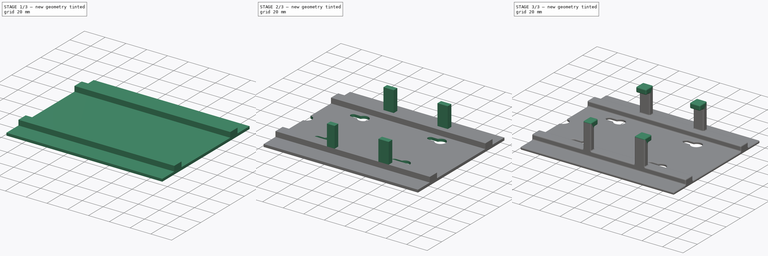
[diagram: build sequence overview — one tinted view per stage of 3, left to right]
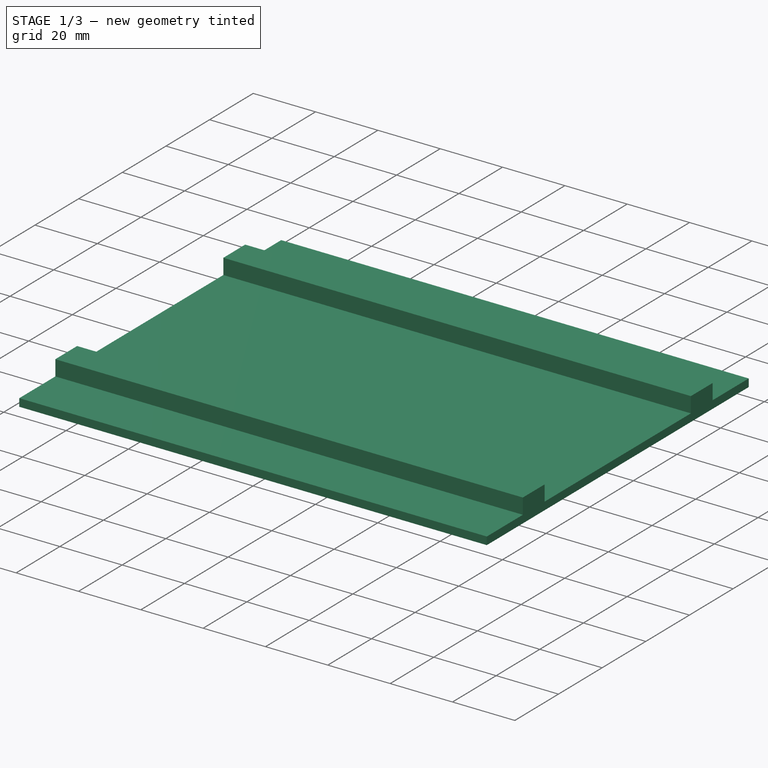
[diagram: stage 1 of 3 — iso view after this stage's code; geometry added in this stage tinted green]
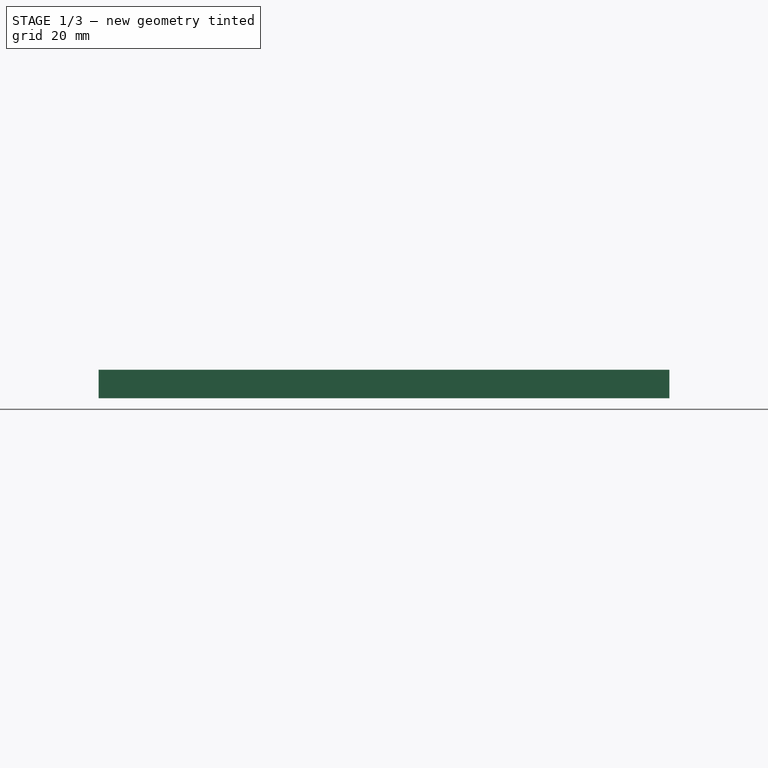
[diagram: stage 1 of 3 — front view after this stage's code; geometry added in this stage tinted green]
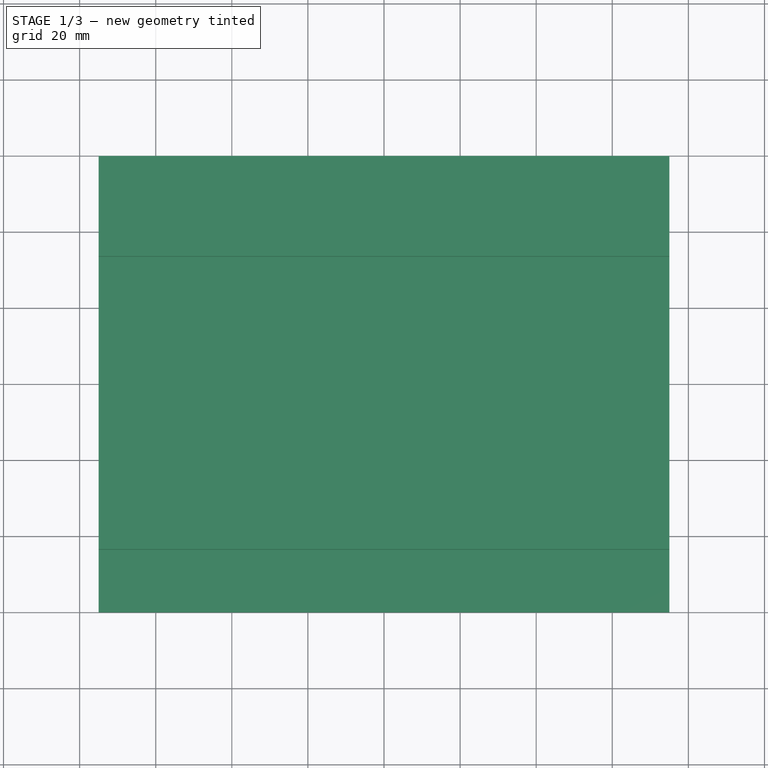
[diagram: stage 1 of 3 — top view after this stage's code; geometry added in this stage tinted green]
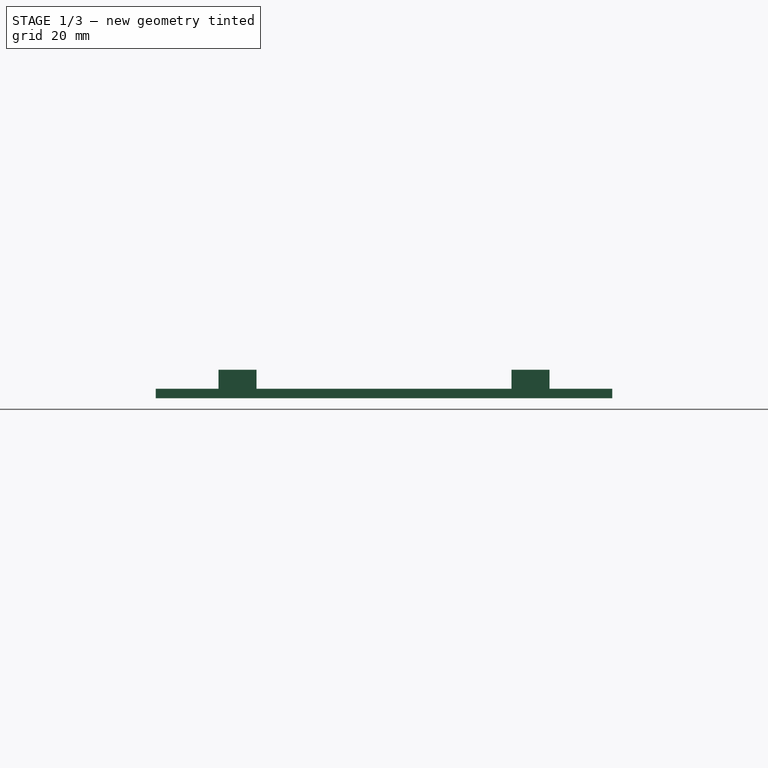
[diagram: stage 1 of 3 — right view after this stage's code; geometry added in this stage tinted green]
FCSTD DOCUMENT  (FreeCAD 1.1R20260325 (Git shallow))
Label: ZimaBoard2Mount
License: All rights reserved
LicenseURL: https://en.wikipedia.org/wiki/All_rights_reserved
objects: Sketcher::SketchObject×5, PartDesign::Pad×4, App::Point×1, PartDesign::Pocket×1, PartDesign::Fillet×1, PartDesign::Body×1
note: 29 computed .brp shape members not serialized (recipe doc carries the construction recipe); baked Part::Feature solids carry a one-line shape summary decoded from their .brp

FEATURE [App::Point] Origin001  label="Origin"
  Role = Origin
FEATURE [Sketcher::SketchObject] Sketch  label="Base"
  ArcFitTolerance = 1e-06
  AttachmentSupport = -> [Origin]
  ExternalTypes = [0]
  FullyConstrained = true
  MakeInternals = false
  MapMode = 5
  _ExternalGeoVersion = 1
  sketch-geometry (14):
    g0: LineSegment [constr] StartX=-70 StartY=38.5 StartZ=0 EndX=-70 EndY=-38.5 EndZ=0
    g1: LineSegment [constr] StartX=-70 StartY=-38.5 StartZ=0 EndX=70 EndY=-38.5 EndZ=0
    g2: LineSegment [constr] StartX=70 StartY=-38.5 StartZ=0 EndX=70 EndY=38.5 EndZ=0
    g3: LineSegment [constr] StartX=70 StartY=38.5 StartZ=0 EndX=-70 EndY=38.5 EndZ=0
    g4: GeomPoint [constr] X=0 Y=-1e-16 Z=0
    g5: LineSegment [constr] StartX=-16 StartY=-38.5 StartZ=0 EndX=-16 EndY=-44.5 EndZ=0
    g6: LineSegment [constr] StartX=-16 StartY=-44.5 StartZ=0 EndX=23 EndY=-44.5 EndZ=0
    g7: LineSegment [constr] StartX=23 StartY=-44.5 StartZ=0 EndX=23 EndY=-38.5 EndZ=0
    g8: LineSegment [constr] StartX=23 StartY=-38.5 StartZ=0 EndX=-16 EndY=-38.5 EndZ=0
    g9: LineSegment StartX=-75 StartY=60 StartZ=0 EndX=-75 EndY=-60 EndZ=0
    g10: LineSegment StartX=-75 StartY=-60 StartZ=0 EndX=75 EndY=-60 EndZ=0
    g11: LineSegment StartX=75 StartY=-60 StartZ=0 EndX=75 EndY=60 EndZ=0
    g12: LineSegment StartX=75 StartY=60 StartZ=0 EndX=-75 EndY=60 EndZ=0
    g13: GeomPoint [constr] X=0 Y=-1e-16 Z=0
  constraints (36):
    c: Coincident(g0,g1)
    c: Coincident(g1,g2)
    c: Coincident(g2,g3)
    c: Coincident(g3,g0)
    c: Vertical(g0)
    c: Vertical(g2)
    c: Horizontal(g1)
    c: Horizontal(g3)
    c: Symmetric(g2,g0,g4)
    c: Coincident(g4,g-1)
    c: DistanceX(g3,g3) = 140
    c: DistanceY(g2,g2) = 77
    c: Coincident(g5,g6)
    c: Coincident(g6,g7)
    c: Coincident(g7,g8)
    c: Coincident(g8,g5)
    c: Vertical(g5)
    c: Vertical(g7)
    c: Horizontal(g6)
    c: Horizontal(g8)
    c: DistanceX(g6,g6) = 39
    c: Distance(g7,g7) = 6
    c: PointOnObject(g5,g1)
    c: Distance(g2,g7) = 47
    c: Coincident(g9,g10)
    c: Coincident(g10,g11)
    c: Coincident(g11,g12)
    c: Coincident(g12,g9)
    c: Vertical(g9)
    c: Vertical(g11)
    c: Horizontal(g10)
    c: Horizontal(g12)
    c: Symmetric(g11,g9,g13)
    c: Coincident(g13,g4)
    c: Distance(g0,g9) = 5
    c: DistanceY(g9,g9) = 120
FEATURE [PartDesign::Pad] Pad  label="BasePad"
  Direction = (0,0,1)
  Length = 2.5
  Length2 = 10
  Profile = -> Sketch
  ReferenceAxis = -> Sketch [N_Axis]
  Refine = true
  SideType = 0
  Suppressed = false
  Type = 0
  Type2 = 0
FEATURE [Sketcher::SketchObject] Sketch001  label="StandOffs"
  ArcFitTolerance = 1e-06
  AttachmentSupport = -> [Pad]
  ExternalGeometry = -> [Pad]
  ExternalTypes = [0,0,0,0]
  FullyConstrained = true
  MakeInternals = false
  MapMode = 5
  Placement = pos=(0,0,2.5) rot=(0,0,1;0rad)
  _ExternalGeoVersion = 1
  sketch-geometry (13):
    g0: LineSegment StartX=-75 StartY=-43.5 StartZ=0 EndX=75 EndY=-43.5 EndZ=0
    g1: LineSegment StartX=75 StartY=-43.5 StartZ=0 EndX=75 EndY=-33.5 EndZ=0
    g2: LineSegment StartX=75 StartY=-33.5 StartZ=0 EndX=-75 EndY=-33.5 EndZ=0
    g3: LineSegment StartX=-75 StartY=-33.5 StartZ=0 EndX=-75 EndY=-43.5 EndZ=0
    g4: LineSegment StartX=-75 StartY=43.5 StartZ=0 EndX=-75 EndY=33.5 EndZ=0
    g5: LineSegment StartX=-75 StartY=33.5 StartZ=0 EndX=75 EndY=33.5 EndZ=0
    g6: LineSegment StartX=75 StartY=33.5 StartZ=0 EndX=75 EndY=43.5 EndZ=0
    g7: LineSegment StartX=75 StartY=43.5 StartZ=0 EndX=-75 EndY=43.5 EndZ=0
    g8: LineSegment [constr] StartX=-75 StartY=43.5 StartZ=0 EndX=-75 EndY=-43.5 EndZ=0
    g9: LineSegment [constr] StartX=-75 StartY=-43.5 StartZ=0 EndX=75 EndY=-43.5 EndZ=0
    g10: LineSegment [constr] StartX=75 StartY=-43.5 StartZ=0 EndX=75 EndY=43.5 EndZ=0
    g11: LineSegment [constr] StartX=75 StartY=43.5 StartZ=0 EndX=-75 EndY=43.5 EndZ=0
    g12: GeomPoint [constr] X=0 Y=0 Z=0
  constraints (34):
    c: Horizontal(g0)
    c: Horizontal(g2)
    c: Vertical(g1)
    c: Vertical(g3)
    c: PointOnObject(g1,g-4)
    c: Vertical(g4)
    c: Vertical(g6)
    c: Horizontal(g5)
    c: Horizontal(g7)
    c: PointOnObject(g5,g-4)
    c: Distance(g4,g4) = 10
    c: Distance(g3,g3) = 10
    c: Coincident(g4,g7)
    c: Coincident(g6,g7)
    c: Coincident(g6,g5)
    c: Coincident(g5,g4)
    c: PointOnObject(g4,g-3)
    c: Coincident(g1,g2)
    c: Coincident(g3,g2)
    c: Coincident(g3,g0)
    c: Coincident(g1,g0)
    c: PointOnObject(g2,g-3)
    c: Coincident(g8,g9)
    c: Coincident(g9,g10)
    c: Coincident(g10,g11)
    c: Coincident(g11,g8)
    c: Vertical(g8)
    c: Horizontal(g9)
    c: Horizontal(g11)
    c: Symmetric(g10,g8,g12)
    c: Coincident(g12,g-1)
    c: DistanceY(g10,g10) = 87
    c: Coincident(g6,g10)
    c: Coincident(g0,g9)
FEATURE [PartDesign::Pad] Pad001  label="StandOffsPad"
  BaseFeature = -> Pad
  Direction = (0,0,1)
  Length = 5
  Length2 = 10
  Profile = -> Sketch001
  ReferenceAxis = -> Sketch001 [N_Axis]
  Refine = true
  SideType = 0
  Suppressed = false
  Type = 0
  Type2 = 0
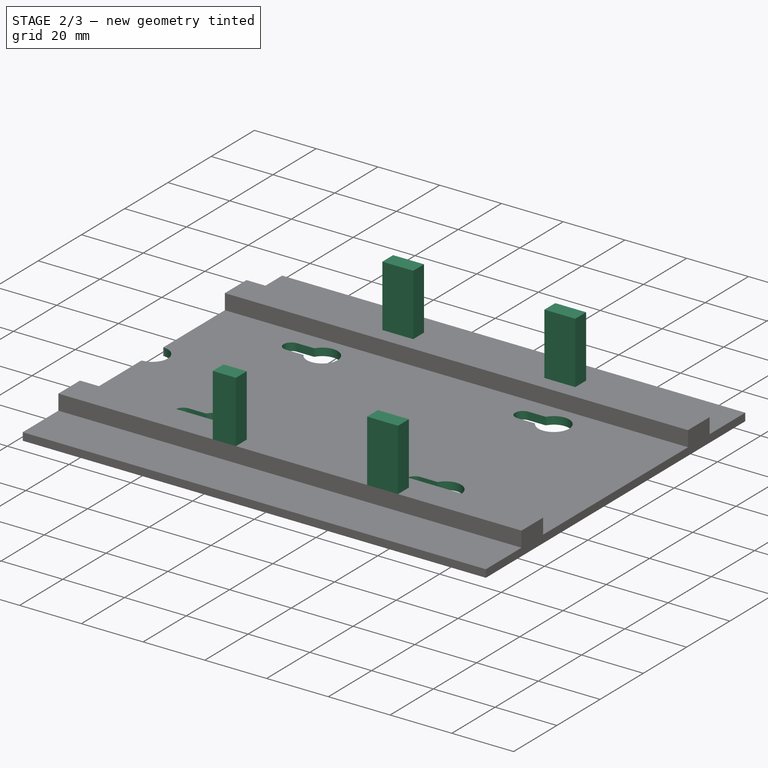
[diagram: stage 2 of 3 — iso view after this stage's code; geometry added in this stage tinted green]
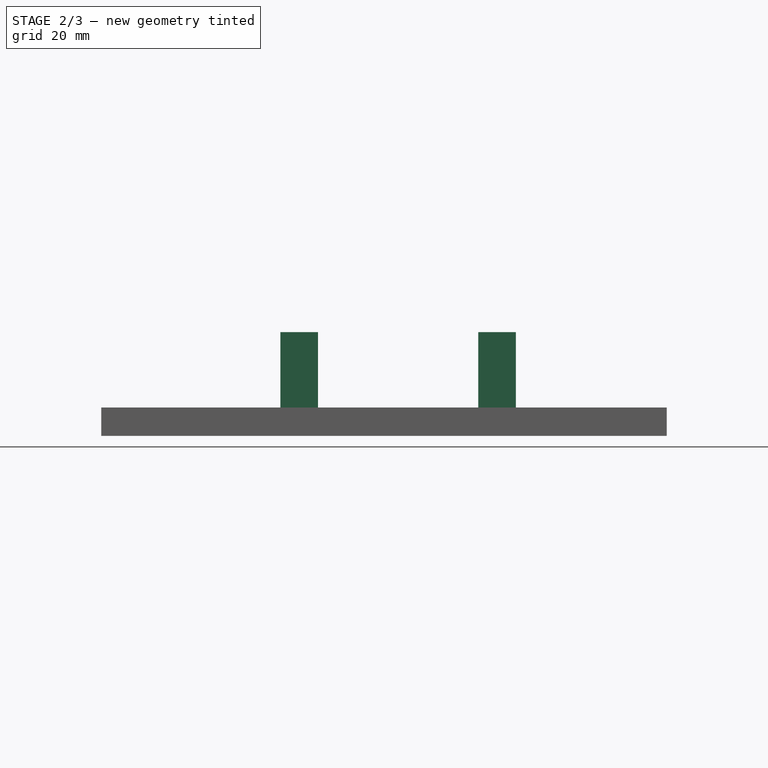
[diagram: stage 2 of 3 — front view after this stage's code; geometry added in this stage tinted green]
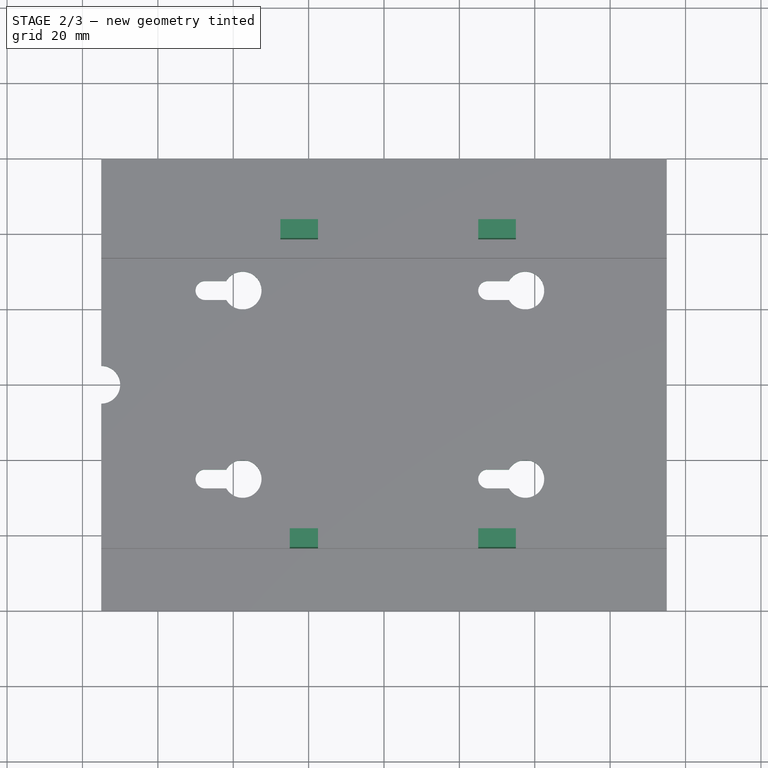
[diagram: stage 2 of 3 — top view after this stage's code; geometry added in this stage tinted green]
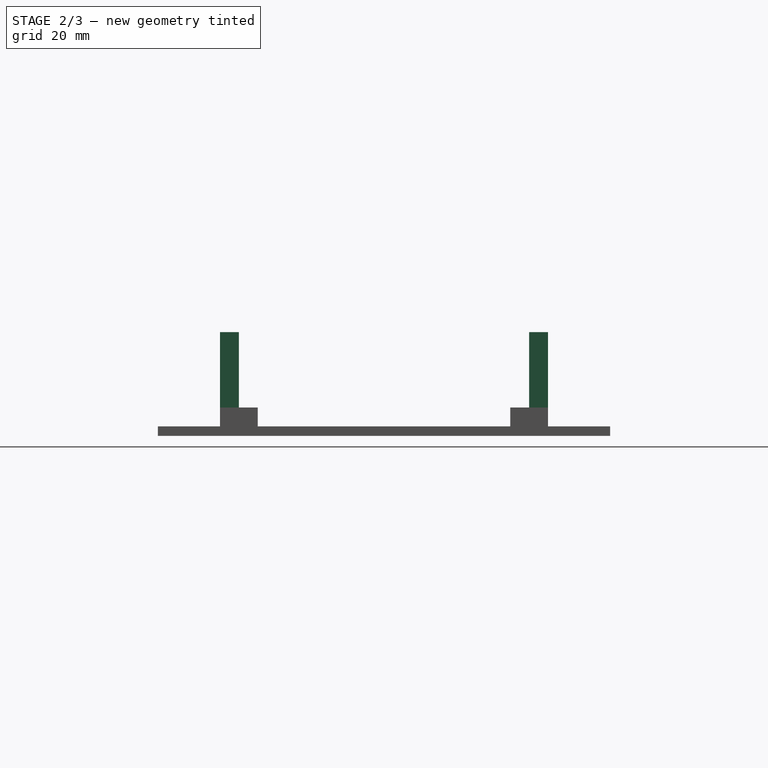
[diagram: stage 2 of 3 — right view after this stage's code; geometry added in this stage tinted green]
FEATURE [Sketcher::SketchObject] Sketch002  label="MountHoles"
  ArcFitTolerance = 1e-06
  AttachmentSupport = -> [Pad001]
  ExternalTypes = [0]
  FullyConstrained = true
  MakeInternals = false
  MapMode = 5
  Placement = pos=(0,0,2.5) rot=(0,0,1;0rad)
  _ExternalGeoVersion = 1
  sketch-geometry (28):
    g0: LineSegment [constr] StartX=-37.5 StartY=25 StartZ=0 EndX=-37.5 EndY=-25 EndZ=0
    g1: LineSegment [constr] StartX=-37.5 StartY=-25 StartZ=0 EndX=37.5 EndY=-25 EndZ=0
    g2: LineSegment [constr] StartX=37.5 StartY=-25 StartZ=0 EndX=37.5 EndY=25 EndZ=0
    g3: LineSegment [constr] StartX=37.5 StartY=25 StartZ=0 EndX=-37.5 EndY=25 EndZ=0
    g4: GeomPoint [constr] X=0 Y=0 Z=0
    g5: Circle CenterX=-37.5 CenterY=25 CenterZ=0 NormalX=0 NormalY=0 NormalZ=1 AngleXU=0 Radius=5
    g6: Circle CenterX=37.5 CenterY=25 CenterZ=0 NormalX=0 NormalY=0 NormalZ=1 AngleXU=0 Radius=5
    g7: Circle CenterX=-37.5 CenterY=-25 CenterZ=0 NormalX=0 NormalY=0 NormalZ=1 AngleXU=0 Radius=5
    g8: Circle CenterX=37.5 CenterY=-25 CenterZ=0 NormalX=0 NormalY=0 NormalZ=1 AngleXU=0 Radius=5
    g9: LineSegment [constr] StartX=-37.5 StartY=25 StartZ=0 EndX=-75 EndY=25 EndZ=0
    g10: LineSegment [constr] StartX=-37.5 StartY=-25 StartZ=0 EndX=-75 EndY=-25 EndZ=0
    g11: Circle CenterX=-75 CenterY=0 CenterZ=0 NormalX=0 NormalY=0 NormalZ=1 AngleXU=0 Radius=5
    g12: ArcOfCircle CenterX=-37.5 CenterY=25 CenterZ=0 NormalX=0 NormalY=0 NormalZ=1 AngleXU=0 Radius=2.5 StartAngle=4.71239 EndAngle=7.85398
    g13: ArcOfCircle CenterX=-47.5 CenterY=25 CenterZ=0 NormalX=0 NormalY=0 NormalZ=1 AngleXU=0 Radius=2.5 StartAngle=1.5708 EndAngle=4.71239
    g14: LineSegment StartX=-37.5 StartY=22.5 StartZ=0 EndX=-47.5 EndY=22.5 EndZ=0
    g15: LineSegment StartX=-37.5 StartY=27.5 StartZ=0 EndX=-47.5 EndY=27.5 EndZ=0
    g16: ArcOfCircle CenterX=-37.5 CenterY=-25 CenterZ=0 NormalX=0 NormalY=0 NormalZ=1 AngleXU=0 Radius=2.5 StartAngle=4.71239 EndAngle=7.85398
    g17: ArcOfCircle CenterX=-47.5 CenterY=-25 CenterZ=0 NormalX=0 NormalY=0 NormalZ=1 AngleXU=0 Radius=2.5 StartAngle=1.5708 EndAngle=4.71239
    g18: LineSegment StartX=-37.5 StartY=-27.5 StartZ=0 EndX=-47.5 EndY=-27.5 EndZ=0
    g19: LineSegment StartX=-37.5 StartY=-22.5 StartZ=0 EndX=-47.5 EndY=-22.5 EndZ=0
    g20: ArcOfCircle CenterX=37.5 CenterY=-25 CenterZ=0 NormalX=0 NormalY=0 NormalZ=1 AngleXU=0 Radius=2.5 StartAngle=4.71239 EndAngle=7.85398
    g21: ArcOfCircle CenterX=27.5 CenterY=-25 CenterZ=0 NormalX=0 NormalY=0 NormalZ=1 AngleXU=0 Radius=2.5 StartAngle=1.5708 EndAngle=4.71239
    g22: LineSegment StartX=37.5 StartY=-27.5 StartZ=0 EndX=27.5 EndY=-27.5 EndZ=0
    g23: LineSegment StartX=37.5 StartY=-22.5 StartZ=0 EndX=27.5 EndY=-22.5 EndZ=0
    g24: ArcOfCircle CenterX=37.5 CenterY=25 CenterZ=0 NormalX=0 NormalY=0 NormalZ=1 AngleXU=0 Radius=2.5 StartAngle=4.71239 EndAngle=7.85398
    g25: ArcOfCircle CenterX=27.5 CenterY=25 CenterZ=0 NormalX=0 NormalY=0 NormalZ=1 AngleXU=0 Radius=2.5 StartAngle=1.5708 EndAngle=4.71239
    g26: LineSegment StartX=37.5 StartY=22.5 StartZ=0 EndX=27.5 EndY=22.5 EndZ=0
    g27: LineSegment StartX=37.5 StartY=27.5 StartZ=0 EndX=27.5 EndY=27.5 EndZ=0
  constraints (65):
    c: Coincident(g0,g1)
    c: Coincident(g1,g2)
    c: Coincident(g2,g3)
    c: Coincident(g3,g0)
    c: Vertical(g0)
    c: Vertical(g2)
    c: Horizontal(g1)
    c: Horizontal(g3)
    c: Symmetric(g2,g0,g4)
    c: Coincident(g4,g-1)
    c: Coincident(g5,g0)
    c: Coincident(g6,g2)
    c: Coincident(g7,g0)
    c: Coincident(g8,g1)
    c: Diameter(g5) = 10
    c: Diameter(g7) = 10
    c: Diameter(g6) = 10
    c: Diameter(g8) = 10
    c: DistanceX(g3,g3) = 75
    c: DistanceY(g0,g0) = 50
    c: Coincident(g9,g0)
    c: PointOnObject(g9,g-3)
    c: Horizontal(g9)
    c: Coincident(g10,g0)
    c: PointOnObject(g10,g-3)
    c: Horizontal(g10)
    c: PointOnObject(g11,g-1)
    c: Diameter(g11) = 10
    c: PointOnObject(g11,g-3)
    c: Tangent(g12,g14) = 1.5708
    c: Tangent(g12,g15) = -1.5708
    c: Tangent(g13,g14) = 1.5708
    c: Tangent(g13,g15) = -1.5708
    c: Equal(g12,g13)
    c: Coincident(g12,g0)
    c: PointOnObject(g13,g9)
    c: Tangent(g16,g18) = 1.5708
    c: Tangent(g16,g19) = -1.5708
    c: Tangent(g17,g18) = 1.5708
    c: Tangent(g17,g19) = -1.5708
    c: Equal(g16,g17)
    c: Coincident(g16,g0)
    c: PointOnObject(g17,g10)
    c: Tangent(g20,g22) = 1.5708
    c: Tangent(g20,g23) = -1.5708
    c: Tangent(g21,g22) = 1.5708
    c: Tangent(g21,g23) = -1.5708
    c: Equal(g20,g21)
    c: Coincident(g20,g1)
    c: PointOnObject(g21,g1)
    c: Tangent(g24,g26) = 1.5708
    c: Tangent(g24,g27) = -1.5708
    c: Tangent(g25,g26) = 1.5708
    c: Tangent(g25,g27) = -1.5708
    c: Equal(g24,g25)
    c: Coincident(g24,g2)
    c: PointOnObject(g25,g3)
    c: Radius(g13) = 2.5
    c: Radius(g17) = 2.5
    c: Radius(g21) = 2.5
    c: Radius(g25) = 2.5
    c: Distance(g15,g15) = 10
    c: Distance(g27,g27) = 10
    c: Distance(g22,g22) = 10
    c: Distance(g18,g18) = 10
FEATURE [PartDesign::Pocket] Pocket  label="MountHolesPocket"
  BaseFeature = -> Pad001
  Direction = (0,0,-1)
  Length = 5
  Length2 = 5
  Profile = -> Sketch002
  ReferenceAxis = -> Sketch002 [N_Axis]
  Refine = true
  SideType = 0
  Suppressed = false
  Type = 1
  Type2 = 0
FEATURE [Sketcher::SketchObject] Sketch003  label="ClipsPost"
  ArcFitTolerance = 1e-06
  AttachmentSupport = -> [Pocket]
  ExternalGeometry = -> [Pocket]
  ExternalTypes = [0,0,0,0,0,0]
  FullyConstrained = true
  MakeInternals = false
  MapMode = 5
  Placement = pos=(0,0,7.5) rot=(0,0,1;0rad)
  _ExternalGeoVersion = 1
  sketch-geometry (16):
    g0: LineSegment StartX=-27.5 StartY=43.5 StartZ=0 EndX=-27.5 EndY=38.5 EndZ=0
    g1: LineSegment StartX=-27.5 StartY=38.5 StartZ=0 EndX=-17.5 EndY=38.5 EndZ=0
    g2: LineSegment StartX=-17.5 StartY=38.5 StartZ=0 EndX=-17.5 EndY=43.5 EndZ=0
    g3: LineSegment StartX=-17.5 StartY=43.5 StartZ=0 EndX=-27.5 EndY=43.5 EndZ=0
    g4: LineSegment StartX=25 StartY=43.5 StartZ=0 EndX=25 EndY=38.5 EndZ=0
    g5: LineSegment StartX=25 StartY=38.5 StartZ=0 EndX=35 EndY=38.5 EndZ=0
    g6: LineSegment StartX=35 StartY=38.5 StartZ=0 EndX=35 EndY=43.5 EndZ=0
    g7: LineSegment StartX=35 StartY=43.5 StartZ=0 EndX=25 EndY=43.5 EndZ=0
    g8: LineSegment StartX=-25 StartY=-43.5 StartZ=0 EndX=-17.5 EndY=-43.5 EndZ=0
    g9: LineSegment StartX=-17.5 StartY=-43.5 StartZ=0 EndX=-17.5 EndY=-38.5 EndZ=0
    g10: LineSegment StartX=-17.5 StartY=-38.5 StartZ=0 EndX=-25 EndY=-38.5 EndZ=0
    g11: LineSegment StartX=-25 StartY=-38.5 StartZ=0 EndX=-25 EndY=-43.5 EndZ=0
    g12: LineSegment StartX=25 StartY=-43.5 StartZ=0 EndX=35 EndY=-43.5 EndZ=0
    g13: LineSegment StartX=35 StartY=-43.5 StartZ=0 EndX=35 EndY=-38.5 EndZ=0
    g14: LineSegment StartX=35 StartY=-38.5 StartZ=0 EndX=25 EndY=-38.5 EndZ=0
    g15: LineSegment StartX=25 StartY=-38.5 StartZ=0 EndX=25 EndY=-43.5 EndZ=0
  constraints (48):
    c: Coincident(g0,g1)
    c: Coincident(g1,g2)
    c: Coincident(g2,g3)
    c: Coincident(g3,g0)
    c: Vertical(g0)
    c: Vertical(g2)
    c: Horizontal(g1)
    c: Horizontal(g3)
    c: PointOnObject(g0,g-3)
    c: Coincident(g4,g5)
    c: Coincident(g5,g6)
    c: Coincident(g6,g7)
    c: Coincident(g7,g4)
    c: Vertical(g4)
    c: Vertical(g6)
    c: Horizontal(g5)
    c: Horizontal(g7)
    c: PointOnObject(g4,g-3)
    c: Coincident(g8,g9)
    c: Coincident(g9,g10)
    c: Coincident(g10,g11)
    c: Coincident(g11,g8)
    c: Horizontal(g8)
    c: Horizontal(g10)
    c: Vertical(g9)
    c: Vertical(g11)
    c: PointOnObject(g8,g-4)
    c: Coincident(g12,g13)
    c: Coincident(g13,g14)
    c: Coincident(g14,g15)
    c: Coincident(g15,g12)
    c: Horizontal(g12)
    c: Horizontal(g14)
    c: Vertical(g13)
    c: Vertical(g15)
    c: PointOnObject(g12,g-4)
    c: Distance(g9,g9) = 5
    c: Distance(g15,g15) = 5
    c: Distance(g2,g2) = 5
    c: Distance(g4,g4) = 5
    c: Distance(g3,g3) = 10
    c: Distance(g8,g8) = 7.5
    c: Distance(g12,g12) = 10
    c: Distance(g7,g7) = 10
    c: Distance(g0,g-5) = 47.5
    c: Distance(g11,g-8) = 50
    c: Distance(g-6,g6) = 40
    c: Distance(g-7,g13) = 40
FEATURE [PartDesign::Pad] Pad002  label="ClipsPostPad"
  BaseFeature = -> Pocket
  Direction = (0,0,1)
  Length = 20
  Length2 = 10
  Profile = -> Sketch003
  ReferenceAxis = -> Sketch003 [N_Axis]
  Refine = true
  SideType = 0
  Suppressed = false
  Type = 0
  Type2 = 0
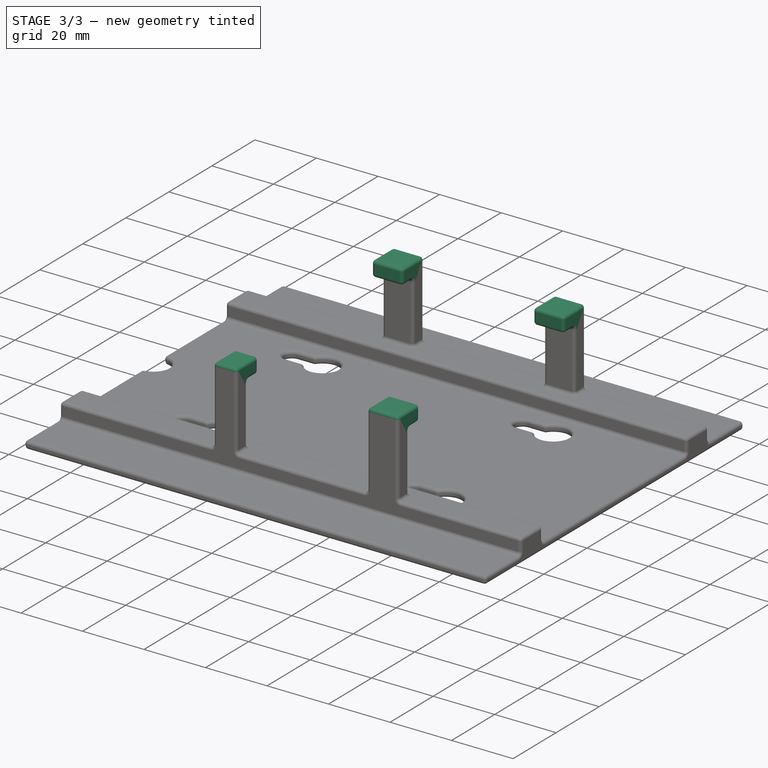
[diagram: stage 3 of 3 — iso view after this stage's code; geometry added in this stage tinted green]
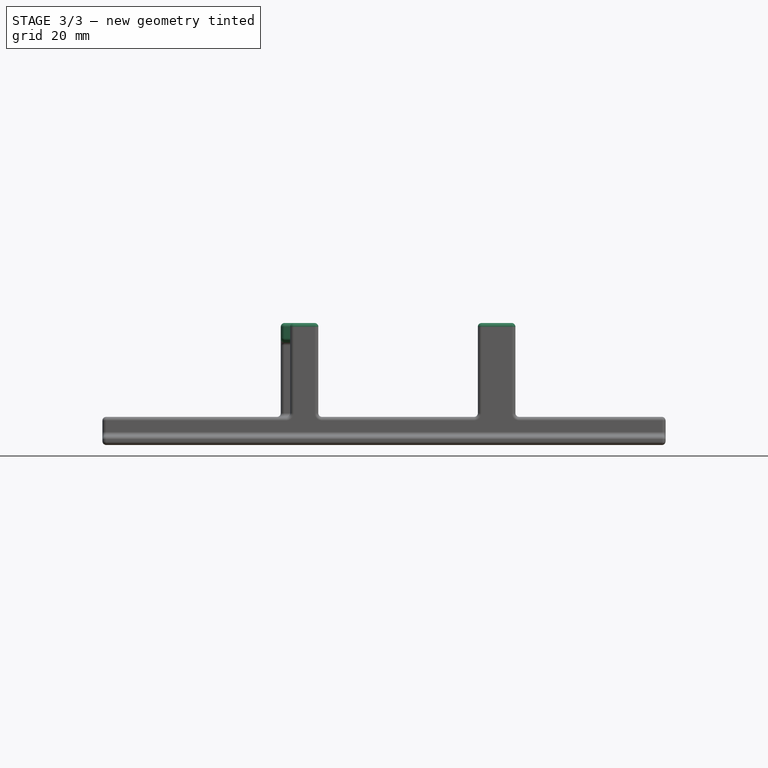
[diagram: stage 3 of 3 — front view after this stage's code; geometry added in this stage tinted green]
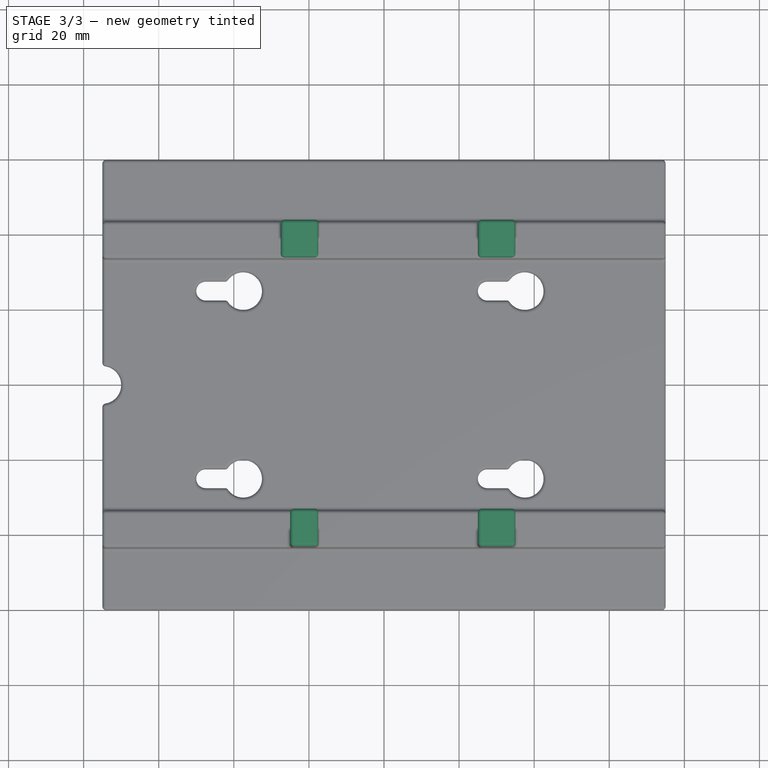
[diagram: stage 3 of 3 — top view after this stage's code; geometry added in this stage tinted green]
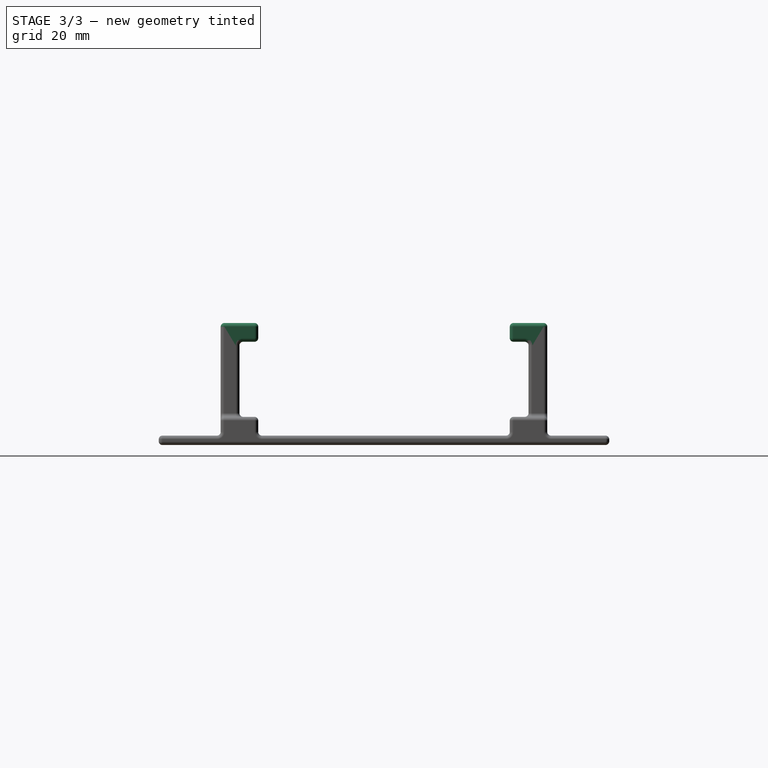
[diagram: stage 3 of 3 — right view after this stage's code; geometry added in this stage tinted green]
FEATURE [Sketcher::SketchObject] Sketch004  label="Clips"
  ArcFitTolerance = 1e-06
  AttachmentSupport = -> [Pad002]
  ExternalGeometry = -> [Pad002]
  ExternalTypes = [0,0,0,0,0,0,0,0,0,0,0,0,0,0]
  FullyConstrained = true
  MakeInternals = false
  MapMode = 5
  Placement = pos=(0,0,27.5) rot=(0,0,1;0rad)
  _ExternalGeoVersion = 1
  sketch-geometry (16):
    g0: LineSegment StartX=-27.5 StartY=43.5 StartZ=0 EndX=-27.5 EndY=33.5 EndZ=0
    g1: LineSegment StartX=-27.5 StartY=33.5 StartZ=0 EndX=-17.5 EndY=33.5 EndZ=0
    g2: LineSegment StartX=-17.5 StartY=33.5 StartZ=0 EndX=-17.5 EndY=43.5 EndZ=0
    g3: LineSegment StartX=-17.5 StartY=43.5 StartZ=0 EndX=-27.5 EndY=43.5 EndZ=0
    g4: LineSegment StartX=35 StartY=43.5 StartZ=0 EndX=25 EndY=43.5 EndZ=0
    g5: LineSegment StartX=25 StartY=43.5 StartZ=0 EndX=25 EndY=33.5 EndZ=0
    g6: LineSegment StartX=25 StartY=33.5 StartZ=0 EndX=35 EndY=33.5 EndZ=0
    g7: LineSegment StartX=35 StartY=33.5 StartZ=0 EndX=35 EndY=43.5 EndZ=0
    g8: LineSegment StartX=-25 StartY=-43.5 StartZ=0 EndX=-17.5 EndY=-43.5 EndZ=0
    g9: LineSegment StartX=-17.5 StartY=-43.5 StartZ=0 EndX=-17.5 EndY=-33.5 EndZ=0
    g10: LineSegment StartX=-17.5 StartY=-33.5 StartZ=0 EndX=-25 EndY=-33.5 EndZ=0
    g11: LineSegment StartX=-25 StartY=-33.5 StartZ=0 EndX=-25 EndY=-43.5 EndZ=0
    g12: LineSegment StartX=35 StartY=-43.5 StartZ=0 EndX=35 EndY=-33.5 EndZ=0
    g13: LineSegment StartX=35 StartY=-33.5 StartZ=0 EndX=25 EndY=-33.5 EndZ=0
    g14: LineSegment StartX=25 StartY=-33.5 StartZ=0 EndX=25 EndY=-43.5 EndZ=0
    g15: LineSegment StartX=25 StartY=-43.5 StartZ=0 EndX=35 EndY=-43.5 EndZ=0
  constraints (40):
    c: Coincident(g0,g1)
    c: Coincident(g1,g2)
    c: Coincident(g2,g3)
    c: Coincident(g3,g0)
    c: Vertical(g0)
    c: Vertical(g2)
    c: Horizontal(g1)
    c: Coincident(g0,g-16)
    c: Coincident(g4,g5)
    c: Coincident(g5,g6)
    c: Coincident(g6,g7)
    c: Coincident(g7,g4)
    c: Horizontal(g6)
    c: Vertical(g5)
    c: Vertical(g7)
    c: Coincident(g4,g-10)
    c: Coincident(g8,g9)
    c: Coincident(g9,g10)
    c: Coincident(g10,g11)
    c: Coincident(g11,g8)
    c: Horizontal(g10)
    c: Vertical(g9)
    c: Vertical(g11)
    c: Coincident(g8,g-20)
    c: Coincident(g12,g13)
    c: Coincident(g13,g14)
    c: Coincident(g14,g15)
    c: Coincident(g15,g12)
    c: Vertical(g12)
    c: Vertical(g14)
    c: Horizontal(g13)
    c: Coincident(g12,g-8)
    c: Coincident(g-16,g2)
    c: Coincident(g-11,g4)
    c: Coincident(g-18,g8)
    c: Coincident(g-7,g14)
    c: Distance(g0,g0) = 10
    c: Distance(g7,g7) = 10
    c: Distance(g11,g11) = 10
    c: Distance(g12,g12) = 10
FEATURE [PartDesign::Pad] Pad003  label="ClipsPad"
  BaseFeature = -> Pad002
  Direction = (0,0,1)
  Length = 5
  Length2 = 10
  Profile = -> Sketch004
  ReferenceAxis = -> Sketch004 [N_Axis]
  Refine = true
  SideType = 0
  Suppressed = false
  Type = 0
  Type2 = 0
FEATURE [PartDesign::Fillet] Fillet
  Base = -> Pad003 [Edge104,Edge32,Edge102,Edge48,Edge50,Edge51,Edge56,Edge59,Edge60,Edge62,Edge64,Edge65,Edge68,Edge69,Edge71,Edge73,Edge74,Edge77,Edge78,Edge80,Edge82,Edge83,Edge86,Edge87,Edge89,Edge91,Edge92,?Edge28,?Edge29,Edge36,Edge29,?Edge32,Edge37,Edge38,Edge43,?Edge36,Edge41,Edge44,?Edge39,Edge49,+120 more]
  BaseFeature = -> Pad003
  Radius = 1
  Refine = true
  SupportTransform = false
  Suppressed = false
  UseAllEdges = true
FEATURE [PartDesign::Body] Body  label="Frame"
  AllowCompound = false
  Group = -> [Sketch,Pad,Sketch001,Pad001,Sketch002,Pocket,Sketch003,Pad002,Sketch004,Pad003,Fillet]
  Origin = -> Origin
  Tip = -> Fillet
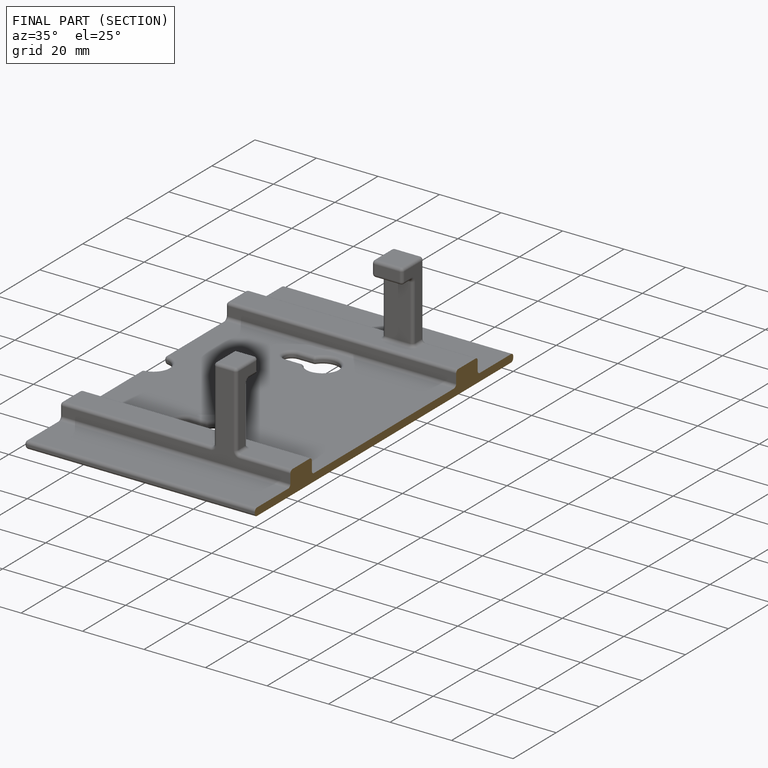
[diagram: finished part — half-section view (interior)]
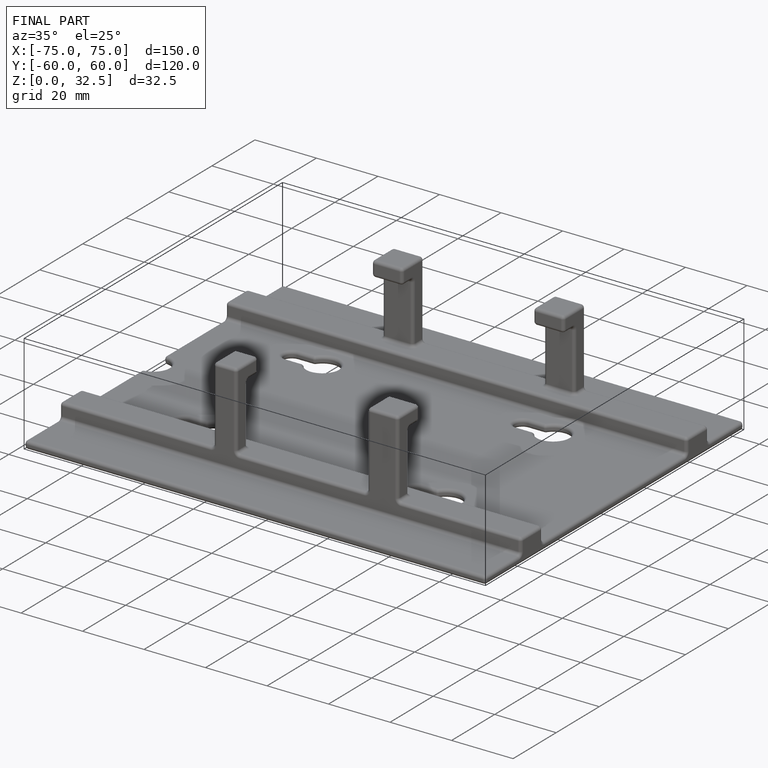
[diagram: finished part — iso view with bounding-box wireframe]
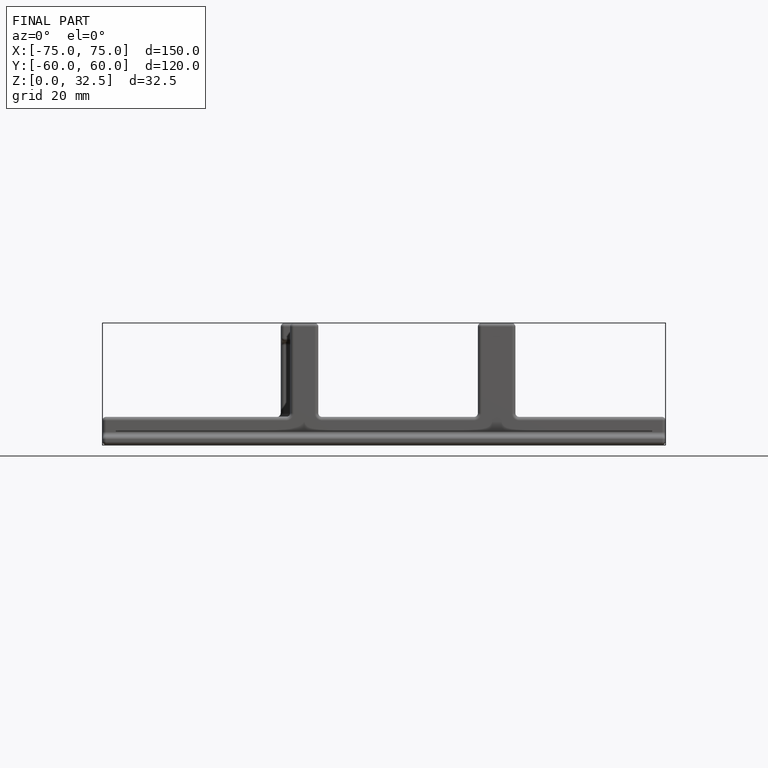
[diagram: finished part — front view with bounding-box wireframe]
